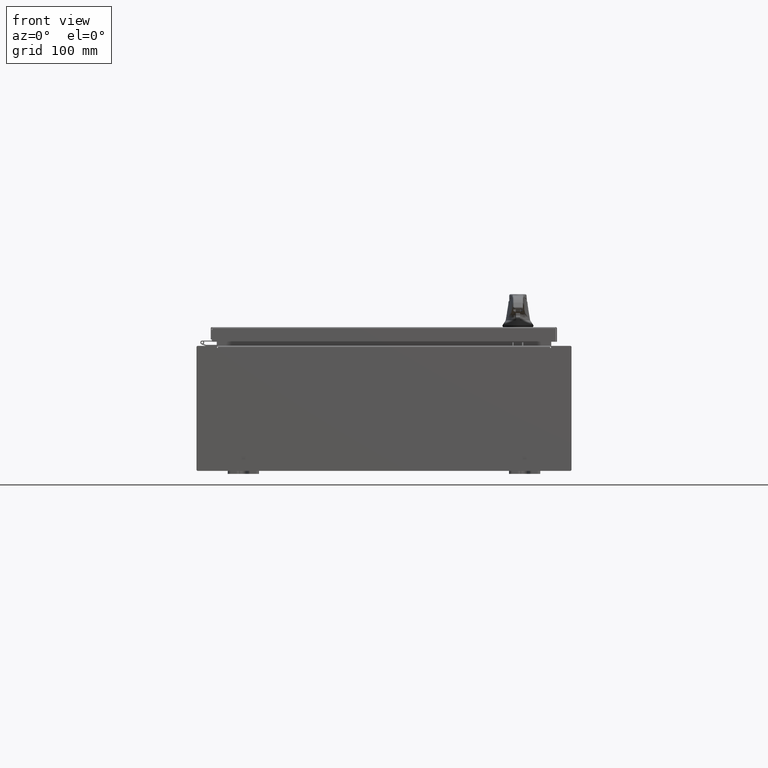
[diagram: clean part render]
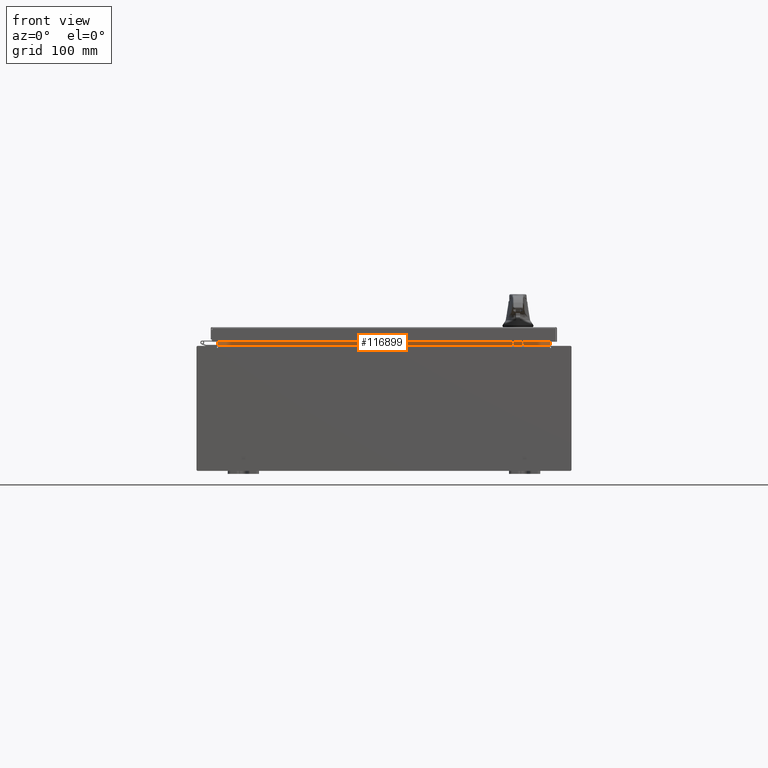
[diagram: same view with one face highlighted and labeled with its STEP entity id]
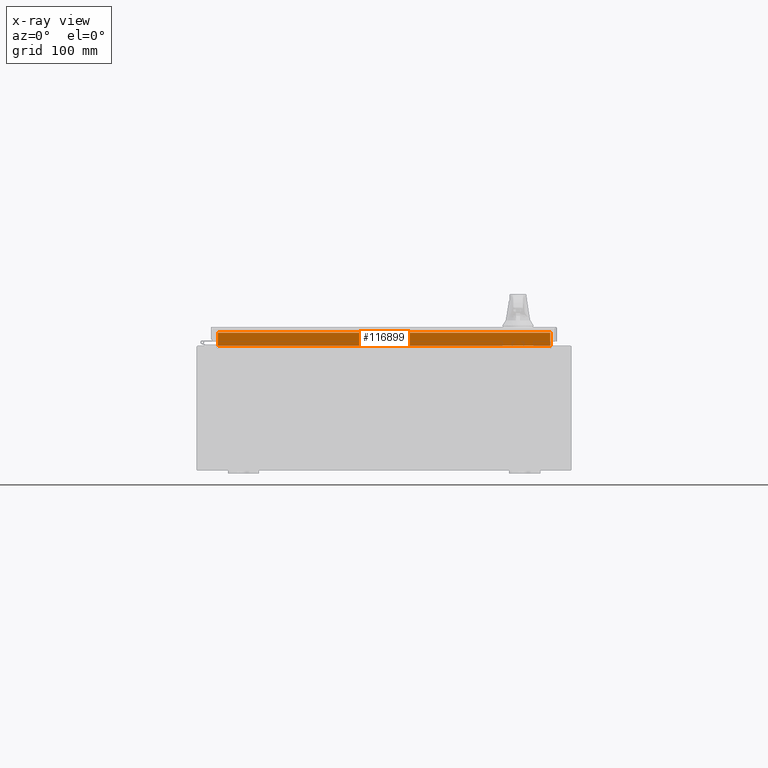
[diagram: x-ray of the same camera — body ghosted, the highlighted face saturated]
A machine part, front view. The second image highlights one B-rep face of the part: STEP entity #116899.
The next image is the same camera in x-ray: the body ghosted, the highlighted face saturated — about 0% of this face is hidden behind the body in this view.
In plain terms, the highlighted planar face has unit normal (0, -1, 0).
Its self-contained STEP definition (entity closure, byte-faithful):
#2160 = EDGE_CURVE ( 'NONE', #87545, #55547, #96794, .T. ) ;
#8314 = EDGE_CURVE ( 'NONE', #55547, #76176, #19559, .T. ) ;
#8598 = LINE ( 'NONE', #45927, #106703 ) ;
#12070 = ORIENTED_EDGE ( 'NONE', *, *, #71545, .F. ) ;
#13907 = FACE_OUTER_BOUND ( 'NONE', #65752, .T. ) ;
#15662 = LINE ( 'NONE', #88172, #66173 ) ;
#19559 = LINE ( 'NONE', #66148, #41844 ) ;
#22275 = ORIENTED_EDGE ( 'NONE', *, *, #68528, .F. ) ;
#24679 = PLANE ( 'NONE',  #114386 ) ;
#31245 = DIRECTION ( 'NONE',  ( -1.000000000000000000, -0.0000000000000000000, -0.0000000000000000000 ) ) ;
#41844 = VECTOR ( 'NONE', #123092, 39.37007874015748100 ) ;
#43775 = DIRECTION ( 'NONE',  ( 0.0000000000000000000, -0.0000000000000000000, 1.000000000000000000 ) ) ;
#45927 = CARTESIAN_POINT ( 'NONE',  ( 10.63720000000000200, -1.300299999999999800, 4.925300000000004500 ) ) ;
#49145 = VECTOR ( 'NONE', #67596, 39.37007874015748100 ) ;
#55547 = VERTEX_POINT ( 'NONE', #70394 ) ;
#59009 = CARTESIAN_POINT ( 'NONE',  ( 10.63720000000000400, -1.300299999999999800, 4.013000000000003500 ) ) ;
#65752 = EDGE_LOOP ( 'NONE', ( #118688, #12070, #22275, #81247 ) ) ;
#66148 = CARTESIAN_POINT ( 'NONE',  ( -10.63720000000000200, -1.300299999999999800, 4.013000000000003500 ) ) ;
#66173 = VECTOR ( 'NONE', #31245, 39.37007874015748100 ) ;
#67596 = DIRECTION ( 'NONE',  ( -0.0000000000000000000, -0.0000000000000000000, -1.000000000000000000 ) ) ;
#68528 = EDGE_CURVE ( 'NONE', #76176, #120759, #8598, .T. ) ;
#69534 = CARTESIAN_POINT ( 'NONE',  ( -10.63720000000000200, -1.300299999999999300, 4.837600000000003700 ) ) ;
#70394 = CARTESIAN_POINT ( 'NONE',  ( -10.63720000000000400, -1.300299999999999800, 4.013000000000003500 ) ) ;
#71506 = CARTESIAN_POINT ( 'NONE',  ( 10.63720000000000200, -1.300299999999999800, 4.837600000000003700 ) ) ;
#71545 = EDGE_CURVE ( 'NONE', #120759, #87545, #15662, .T. ) ;
#76176 = VERTEX_POINT ( 'NONE', #59009 ) ;
#81247 = ORIENTED_EDGE ( 'NONE', *, *, #8314, .F. ) ;
#87545 = VERTEX_POINT ( 'NONE', #69534 ) ;
#88172 = CARTESIAN_POINT ( 'NONE',  ( 10.63720000000000200, -1.300299999999999300, 4.837600000000003700 ) ) ;
#91147 = CARTESIAN_POINT ( 'NONE',  ( 0.0000000000000000000, -1.300299999999999800, 0.0000000000000000000 ) ) ;
#96794 = LINE ( 'NONE', #117742, #49145 ) ;
#100747 = DIRECTION ( 'NONE',  ( 0.0000000000000000000, 1.000000000000000000, 0.0000000000000000000 ) ) ;
#106703 = VECTOR ( 'NONE', #112418, 39.37007874015748100 ) ;
#112418 = DIRECTION ( 'NONE',  ( -0.0000000000000000000, -0.0000000000000000000, 1.000000000000000000 ) ) ;
#114386 = AXIS2_PLACEMENT_3D ( 'NONE', #91147, #100747, #43775 ) ;
#116899 = ADVANCED_FACE ( 'NONE', ( #13907 ), #24679, .T. ) ;
#117742 = CARTESIAN_POINT ( 'NONE',  ( -10.63720000000000200, -1.300299999999999800, 4.000000000000004400 ) ) ;
#118688 = ORIENTED_EDGE ( 'NONE', *, *, #2160, .F. ) ;
#120759 = VERTEX_POINT ( 'NONE', #71506 ) ;
#123092 = DIRECTION ( 'NONE',  ( 1.000000000000000000, 0.0000000000000000000, -2.568202152506545800E-017 ) ) ;